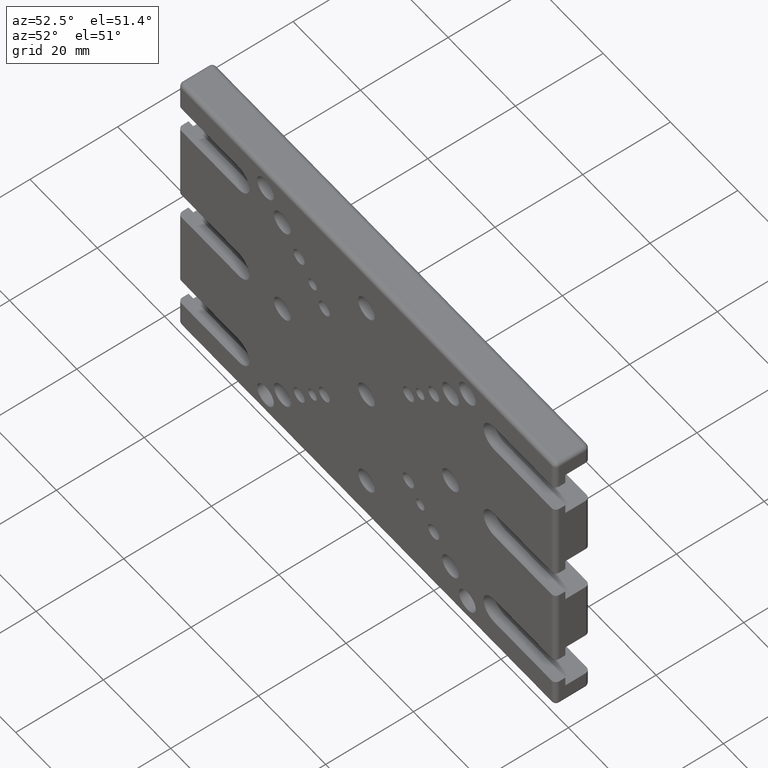
[diagram: clean part render]
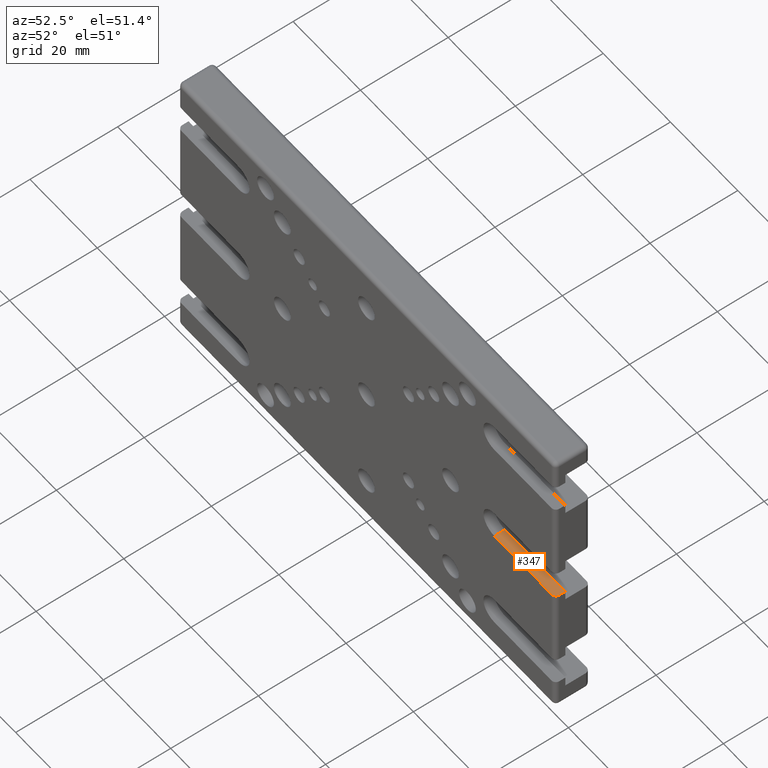
[diagram: same view with one face highlighted and labeled with its STEP entity id]
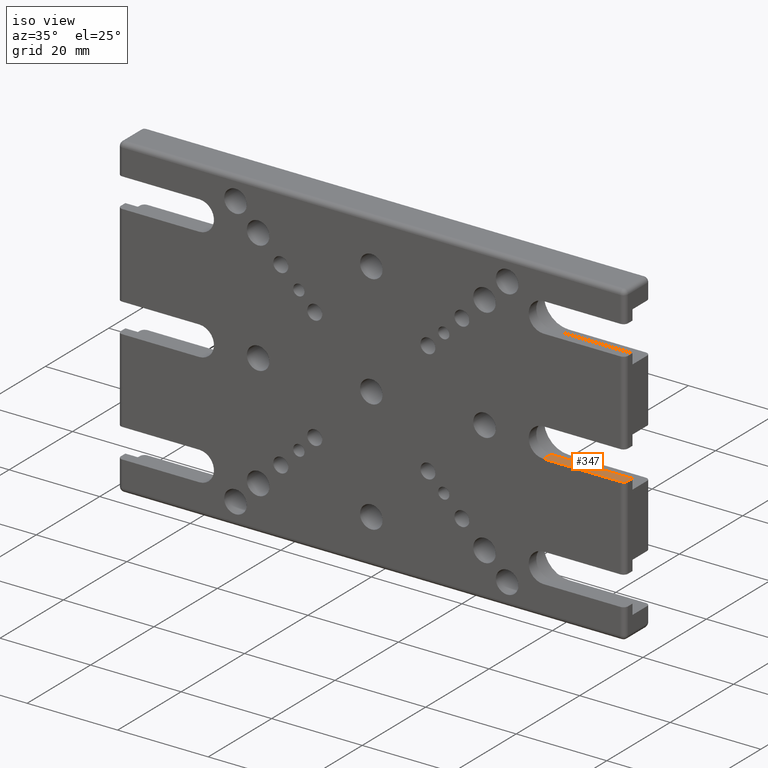
[diagram: same view with one face highlighted and labeled with its STEP entity id]
A machine part, auxiliary view. The second image highlights one B-rep face of the part: STEP entity #347.
A second angle (iso view) of the same face is appended — the face is thin or edge-on in the first view.
In plain terms, the highlighted planar face has unit normal (-0, 0, 1).
Its self-contained STEP definition (entity closure, byte-faithful):
#225 = DIRECTION ( 'NONE',  ( 1.000000000000000000, 0.000000000000000000, 0.000000000000000000 ) ) ;
#259 = CIRCLE ( 'NONE', #3415, 1.000000000000000888 ) ;
#291 = ORIENTED_EDGE ( 'NONE', *, *, #2551, .T. ) ;
#306 = DIRECTION ( 'NONE',  ( -0.000000000000000000, 1.000000000000000000, -0.000000000000000000 ) ) ;
#347 = ADVANCED_FACE ( 'NONE', ( #348 ), #971, .T. ) ;
#348 = FACE_OUTER_BOUND ( 'NONE', #2689, .T. ) ;
#357 = LINE ( 'NONE', #3437, #1915 ) ;
#360 = ORIENTED_EDGE ( 'NONE', *, *, #2920, .F. ) ;
#366 = CARTESIAN_POINT ( 'NONE',  ( 0.000000000000000000, -3.199999999999999734, -3.249999999999995115 ) ) ;
#417 = ORIENTED_EDGE ( 'NONE', *, *, #3096, .F. ) ;
#525 = CARTESIAN_POINT ( 'NONE',  ( 0.000000000000000000, 2.400000000000000355, -3.249999999999995115 ) ) ;
#532 = VERTEX_POINT ( 'NONE', #1682 ) ;
#722 = CARTESIAN_POINT ( 'NONE',  ( 55.99999999999999289, 2.400000000000000355, -3.249999999999995115 ) ) ;
#801 = DIRECTION ( 'NONE',  ( 0.000000000000000000, 1.000000000000000000, 0.000000000000000000 ) ) ;
#849 = CARTESIAN_POINT ( 'NONE',  ( 38.00000000000000000, 2.400000000000000355, -3.249999999999995115 ) ) ;
#971 = PLANE ( 'NONE',  #1423 ) ;
#993 = VECTOR ( 'NONE', #2723, 1000.000000000000000 ) ;
#1032 = VERTEX_POINT ( 'NONE', #2151 ) ;
#1221 = VERTEX_POINT ( 'NONE', #722 ) ;
#1416 = EDGE_CURVE ( 'NONE', #532, #3941, #259, .T. ) ;
#1423 = AXIS2_PLACEMENT_3D ( 'NONE', #366, #2873, #3815 ) ;
#1426 = CARTESIAN_POINT ( 'NONE',  ( 55.99999999999999289, 8.000000000000000000, -3.249999999999996003 ) ) ;
#1555 = VERTEX_POINT ( 'NONE', #849 ) ;
#1682 = CARTESIAN_POINT ( 'NONE',  ( 55.99999999999999289, 1.000000000000000000, -3.249999999999996003 ) ) ;
#1798 = CARTESIAN_POINT ( 'NONE',  ( 54.99999999999999289, 1.000000000000000000, -3.249999999999996003 ) ) ;
#1801 = EDGE_CURVE ( 'NONE', #1032, #3941, #2537, .T. ) ;
#1915 = VECTOR ( 'NONE', #306, 1000.000000000000000 ) ;
#2119 = LINE ( 'NONE', #525, #993 ) ;
#2151 = CARTESIAN_POINT ( 'NONE',  ( 38.00000000000000000, 0.000000000000000000, -3.249999999999995115 ) ) ;
#2308 = ORIENTED_EDGE ( 'NONE', *, *, #1416, .F. ) ;
#2537 = LINE ( 'NONE', #3481, #3335 ) ;
#2551 = EDGE_CURVE ( 'NONE', #532, #1221, #3605, .T. ) ;
#2689 = EDGE_LOOP ( 'NONE', ( #3649, #2308, #291, #417, #360 ) ) ;
#2723 = DIRECTION ( 'NONE',  ( 1.000000000000000000, 0.000000000000000000, 0.000000000000000000 ) ) ;
#2873 = DIRECTION ( 'NONE',  ( -0.000000000000000000, 0.000000000000000000, 1.000000000000000000 ) ) ;
#2920 = EDGE_CURVE ( 'NONE', #1032, #1555, #357, .T. ) ;
#3059 = DIRECTION ( 'NONE',  ( 0.000000000000000000, -0.000000000000000000, -1.000000000000000000 ) ) ;
#3096 = EDGE_CURVE ( 'NONE', #1555, #1221, #2119, .T. ) ;
#3335 = VECTOR ( 'NONE', #3787, 1000.000000000000000 ) ;
#3415 = AXIS2_PLACEMENT_3D ( 'NONE', #1798, #3059, #225 ) ;
#3437 = CARTESIAN_POINT ( 'NONE',  ( 38.00000000000000000, -3.199999999999999734, -3.249999999999995115 ) ) ;
#3481 = CARTESIAN_POINT ( 'NONE',  ( 0.000000000000000000, 0.000000000000000000, -3.249999999999995115 ) ) ;
#3605 = LINE ( 'NONE', #1426, #3936 ) ;
#3649 = ORIENTED_EDGE ( 'NONE', *, *, #1801, .T. ) ;
#3787 = DIRECTION ( 'NONE',  ( 1.000000000000000000, -0.000000000000000000, 0.000000000000000000 ) ) ;
#3815 = DIRECTION ( 'NONE',  ( 1.000000000000000000, 0.000000000000000000, 0.000000000000000000 ) ) ;
#3894 = CARTESIAN_POINT ( 'NONE',  ( 54.99999999999999289, 0.000000000000000000, -3.249999999999996003 ) ) ;
#3936 = VECTOR ( 'NONE', #801, 1000.000000000000000 ) ;
#3941 = VERTEX_POINT ( 'NONE', #3894 ) ;